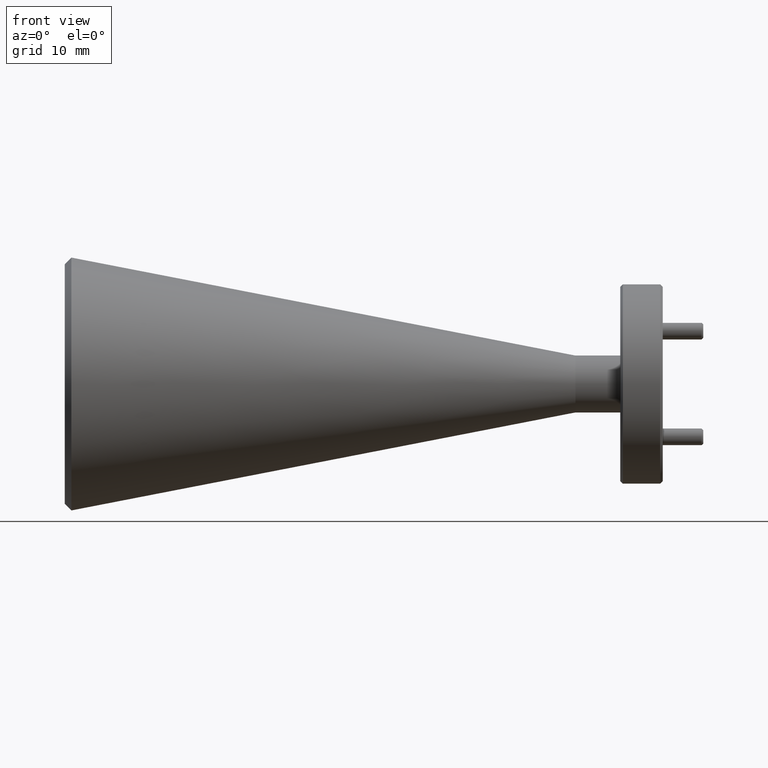
[diagram: clean part render]
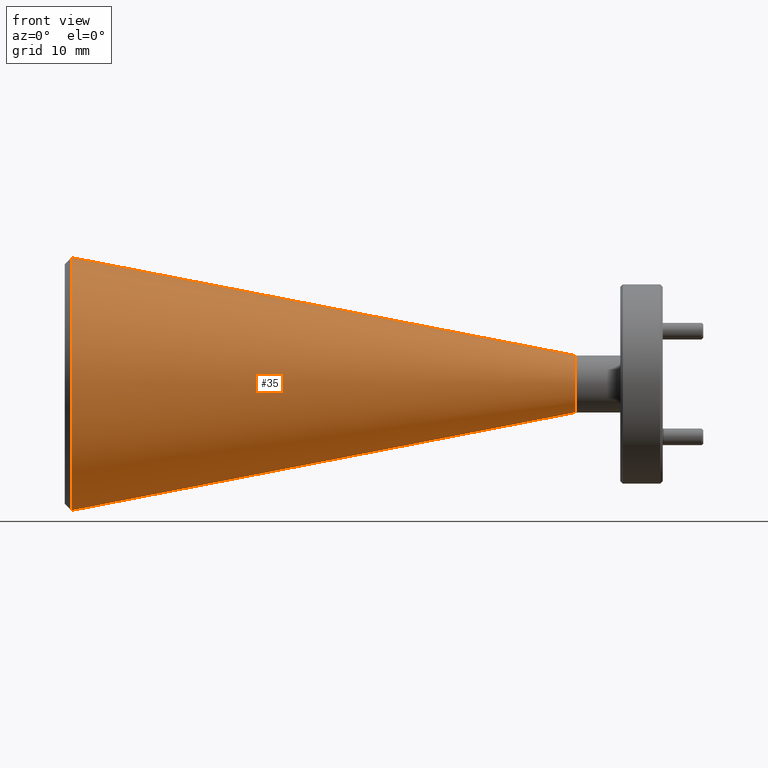
[diagram: same view with one face highlighted and labeled with its STEP entity id]
A machine part, front view. The second image highlights one B-rep face of the part: STEP entity #35.
In plain terms, the highlighted conical surface has half-angle 11 deg.
Its self-contained STEP definition (entity closure, byte-faithful):
#35 = ADVANCED_FACE ( 'NONE', ( #1926 ), #188, .T. ) ;
#151 = CARTESIAN_POINT ( 'NONE',  ( 1.461111115390730797, 1.132380905805825178, 1.361287461640205976 ) ) ;
#173 = EDGE_CURVE ( 'NONE', #641, #391, #2188, .T. ) ;
#188 = CONICAL_SURFACE ( 'NONE', #1656, 0.1069999999999999840, 0.1919862177193692176 ) ;
#391 = VERTEX_POINT ( 'NONE', #1183 ) ;
#486 = DIRECTION ( 'NONE',  ( 1.000000000000000000, -0.000000000000000000, -0.000000000000000000 ) ) ;
#611 = CARTESIAN_POINT ( 'NONE',  ( 1.461111115390730797, 1.132380905805825178, 1.147287461640206008 ) ) ;
#641 = VERTEX_POINT ( 'NONE', #1669 ) ;
#768 = VERTEX_POINT ( 'NONE', #611 ) ;
#777 = ORIENTED_EDGE ( 'NONE', *, *, #173, .T. ) ;
#821 = EDGE_CURVE ( 'NONE', #1701, #768, #1803, .T. ) ;
#954 = CARTESIAN_POINT ( 'NONE',  ( 1.461111115390730797, 1.132380905805825178, 1.361287461640205976 ) ) ;
#1005 = VECTOR ( 'NONE', #1685, 39.37007874015748854 ) ;
#1006 = VECTOR ( 'NONE', #1203, 39.37007874015748854 ) ;
#1011 = LINE ( 'NONE', #2227, #1006 ) ;
#1029 = CARTESIAN_POINT ( 'NONE',  ( 1.461111115390730797, 1.132380905805825178, 1.254287461640205992 ) ) ;
#1107 = EDGE_CURVE ( 'NONE', #1701, #641, #1698, .T. ) ;
#1183 = CARTESIAN_POINT ( 'NONE',  ( -0.4352621818216151905, 1.132380905805825178, 0.7786698338875694958 ) ) ;
#1203 = DIRECTION ( 'NONE',  ( -0.9816271834476651970, 2.336736254363992547E-17, -0.1908089953765379210 ) ) ;
#1237 = CARTESIAN_POINT ( 'NONE',  ( -0.4352621818216151905, 1.132380905805825178, 1.254287461640205992 ) ) ;
#1352 = AXIS2_PLACEMENT_3D ( 'NONE', #2133, #486, #2251 ) ;
#1405 = ORIENTED_EDGE ( 'NONE', *, *, #2349, .F. ) ;
#1580 = DIRECTION ( 'NONE',  ( 0.000000000000000000, 0.000000000000000000, 1.000000000000000000 ) ) ;
#1608 = DIRECTION ( 'NONE',  ( 1.000000000000000000, -0.000000000000000000, -0.000000000000000000 ) ) ;
#1651 = ORIENTED_EDGE ( 'NONE', *, *, #1107, .T. ) ;
#1656 = AXIS2_PLACEMENT_3D ( 'NONE', #1029, #1890, #1580 ) ;
#1669 = CARTESIAN_POINT ( 'NONE',  ( -0.4352621818216151905, 1.132380905805825178, 1.729905089392842488 ) ) ;
#1685 = DIRECTION ( 'NONE',  ( -0.9816271834476651970, 0.000000000000000000, 0.1908089953765379210 ) ) ;
#1698 = LINE ( 'NONE', #954, #1005 ) ;
#1701 = VERTEX_POINT ( 'NONE', #151 ) ;
#1803 = CIRCLE ( 'NONE', #1352, 0.1069999999999999840 ) ;
#1804 = AXIS2_PLACEMENT_3D ( 'NONE', #1237, #1608, #1980 ) ;
#1890 = DIRECTION ( 'NONE',  ( -1.000000000000000000, 0.000000000000000000, 0.000000000000000000 ) ) ;
#1926 = FACE_OUTER_BOUND ( 'NONE', #2149, .T. ) ;
#1980 = DIRECTION ( 'NONE',  ( 0.000000000000000000, 0.000000000000000000, -1.000000000000000000 ) ) ;
#2133 = CARTESIAN_POINT ( 'NONE',  ( 1.461111115390730797, 1.132380905805825178, 1.254287461640205992 ) ) ;
#2149 = EDGE_LOOP ( 'NONE', ( #1405, #2224, #1651, #777 ) ) ;
#2188 = CIRCLE ( 'NONE', #1804, 0.4756176277526365515 ) ;
#2224 = ORIENTED_EDGE ( 'NONE', *, *, #821, .F. ) ;
#2227 = CARTESIAN_POINT ( 'NONE',  ( 1.461111115390730797, 1.132380905805825178, 1.147287461640206008 ) ) ;
#2251 = DIRECTION ( 'NONE',  ( 0.000000000000000000, 0.000000000000000000, -1.000000000000000000 ) ) ;
#2349 = EDGE_CURVE ( 'NONE', #768, #391, #1011, .T. ) ;